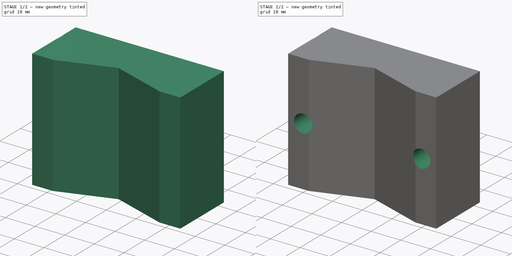
[diagram: build sequence overview — one tinted view per stage of 2, left to right]
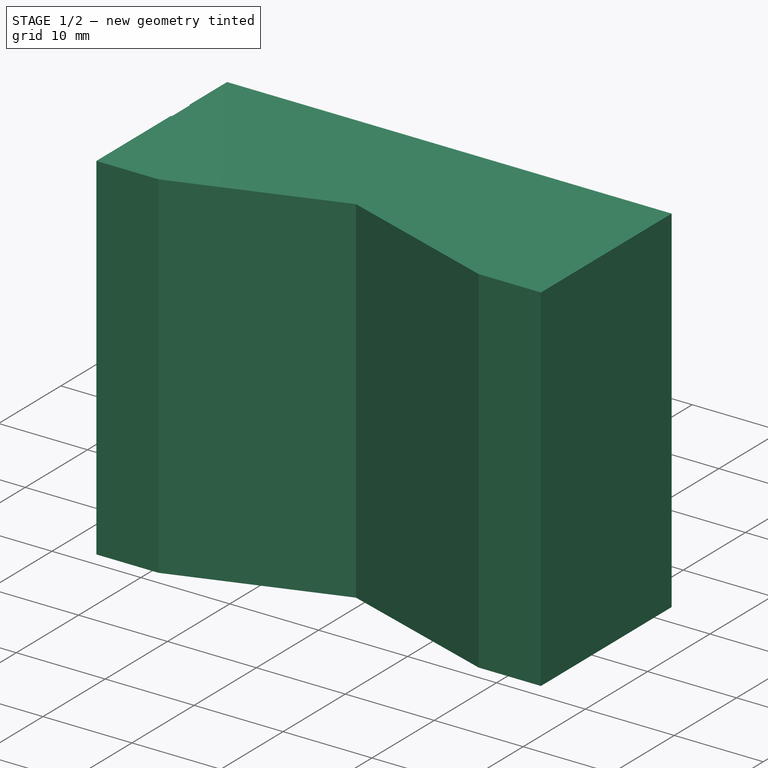
[diagram: stage 1 of 2 — iso view after this stage's code; geometry added in this stage tinted green]
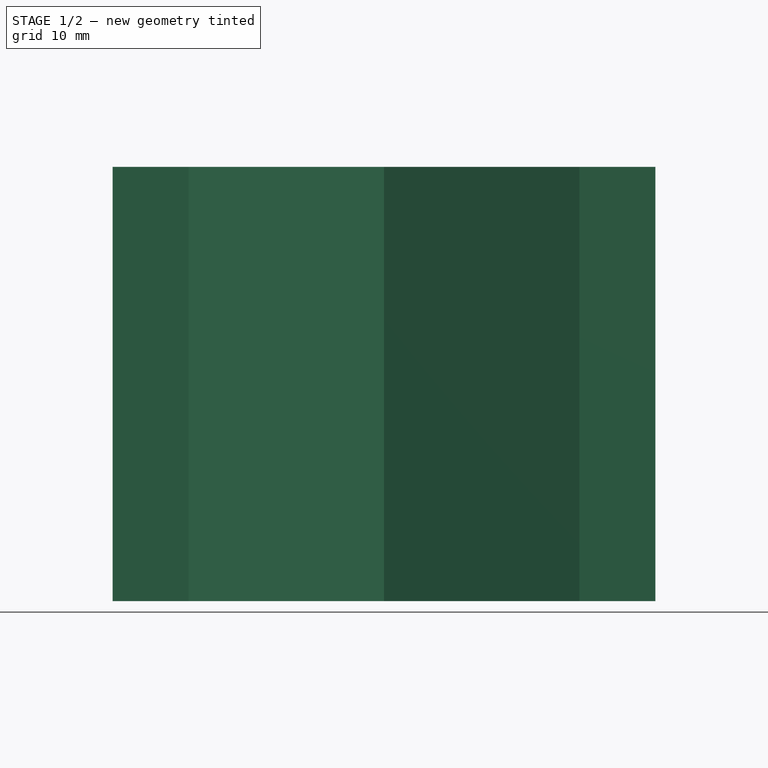
[diagram: stage 1 of 2 — front view after this stage's code; geometry added in this stage tinted green]
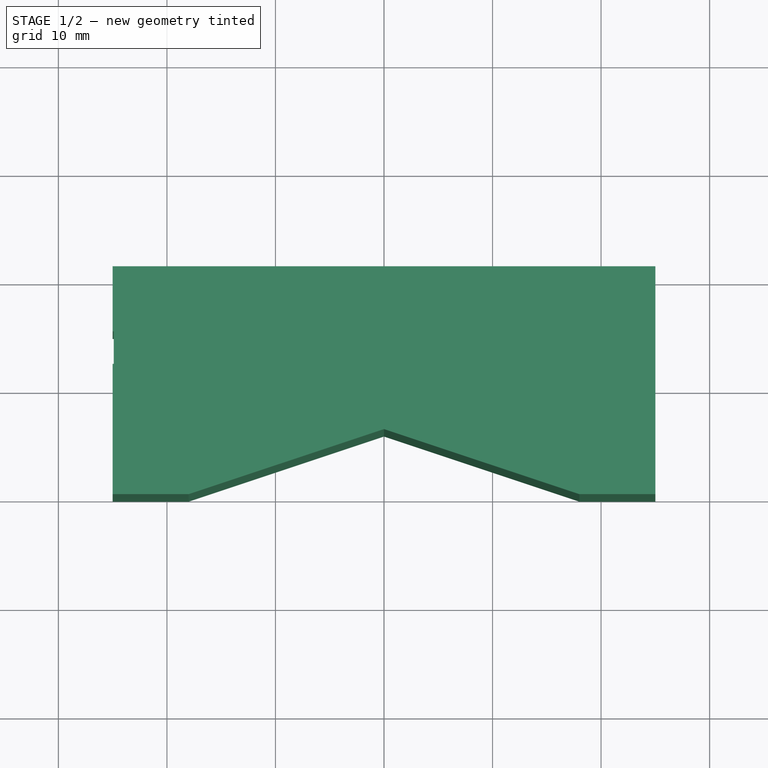
[diagram: stage 1 of 2 — top view after this stage's code; geometry added in this stage tinted green]
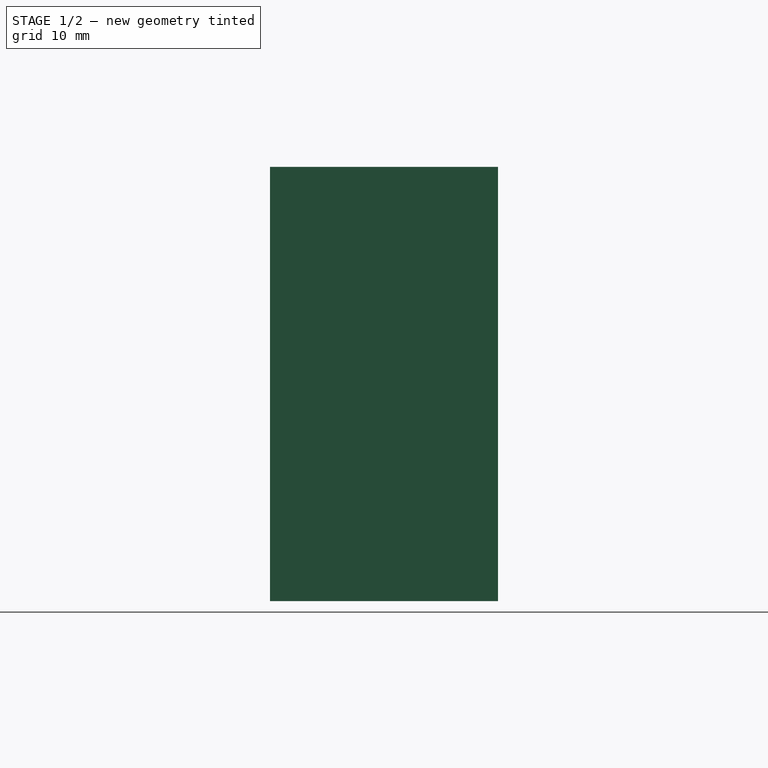
[diagram: stage 1 of 2 — right view after this stage's code; geometry added in this stage tinted green]
FCSTD DOCUMENT  (FreeCAD 0.19R)
Label: BarrelLeveler2
License: All rights reserved
LicenseURL: http://en.wikipedia.org/wiki/All_rights_reserved
objects: Sketcher::SketchObject×2, PartDesign::Pad×1, PartDesign::Pocket×1, PartDesign::Body×1
note: 7 computed .brp shape members not serialized (recipe doc carries the construction recipe); baked Part::Feature solids carry a one-line shape summary decoded from their .brp

FEATURE [Sketcher::SketchObject] Sketch
  FullyConstrained = true
  MapMode = 5
  Support = -> [XY_Plane]
  sketch-geometry (11):
    g0: LineSegment StartX=0 StartY=6 StartZ=0 EndX=18 EndY=0 EndZ=0
    g1: LineSegment StartX=18 StartY=0 StartZ=0 EndX=25 EndY=0 EndZ=0
    g2: LineSegment StartX=25 StartY=0 StartZ=0 EndX=25 EndY=21 EndZ=0
    g3: LineSegment StartX=25 StartY=21 StartZ=0 EndX=-25 EndY=21 EndZ=0
    g4: LineSegment StartX=-25 StartY=21 StartZ=0 EndX=-25 EndY=15 EndZ=0
    g5: LineSegment StartX=-25 StartY=15 StartZ=0 EndX=-24.9 EndY=15 EndZ=0
    g6: LineSegment StartX=-24.9 StartY=15 StartZ=0 EndX=-24.9 EndY=12 EndZ=0
    g7: LineSegment StartX=-24.9 StartY=12 StartZ=0 EndX=-25 EndY=12 EndZ=0
    g8: LineSegment StartX=-25 StartY=12 StartZ=0 EndX=-25 EndY=0 EndZ=0
    g9: LineSegment StartX=-25 StartY=0 StartZ=0 EndX=-18 EndY=0 EndZ=0
    g10: LineSegment StartX=-18 StartY=0 StartZ=0 EndX=0 EndY=6 EndZ=0
  constraints (31):
    c: PointOnObject(g0,g-2)
    c: PointOnObject(g0,g-1)
    c: Coincident(g0,g1)
    c: PointOnObject(g1,g-1)
    c: Coincident(g1,g2)
    c: Vertical(g2)
    c: Coincident(g2,g3)
    c: Coincident(g3,g4)
    c: Coincident(g4,g5)
    c: Horizontal(g5)
    c: Coincident(g5,g6)
    c: Vertical(g6)
    c: Coincident(g6,g7)
    c: Horizontal(g7)
    c: Coincident(g7,g8)
    c: PointOnObject(g8,g-1)
    c: Coincident(g8,g9)
    c: Coincident(g9,g10)
    c: Coincident(g10,g0)
    c: Symmetric(g0,g9,g-2)
    c: Symmetric(g2,g3,g-2)
    c: Vertical(g8)
    c: Vertical(g4)
    c: DistanceY(g0) = 6
    c: DistanceX(g0) = 18
    c: DistanceX(g1) = 25
    c: Equal(g1,g9)
    c: Distance(g8) = 12
    c: Distance(g6) = 3
    c: Distance(g4) = 6
    c: Distance(g7) = 0.1
FEATURE [PartDesign::Pad] Pad
  Direction = (1,1,1)
  Length = 40
  Length2 = 100
  Profile = -> Sketch
  Type = 0
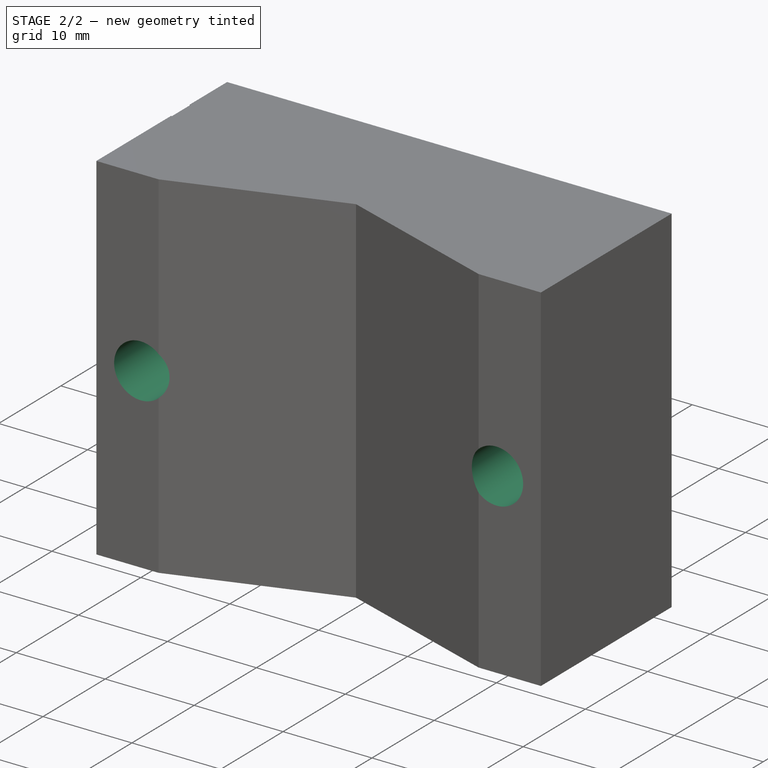
[diagram: stage 2 of 2 — iso view after this stage's code; geometry added in this stage tinted green]
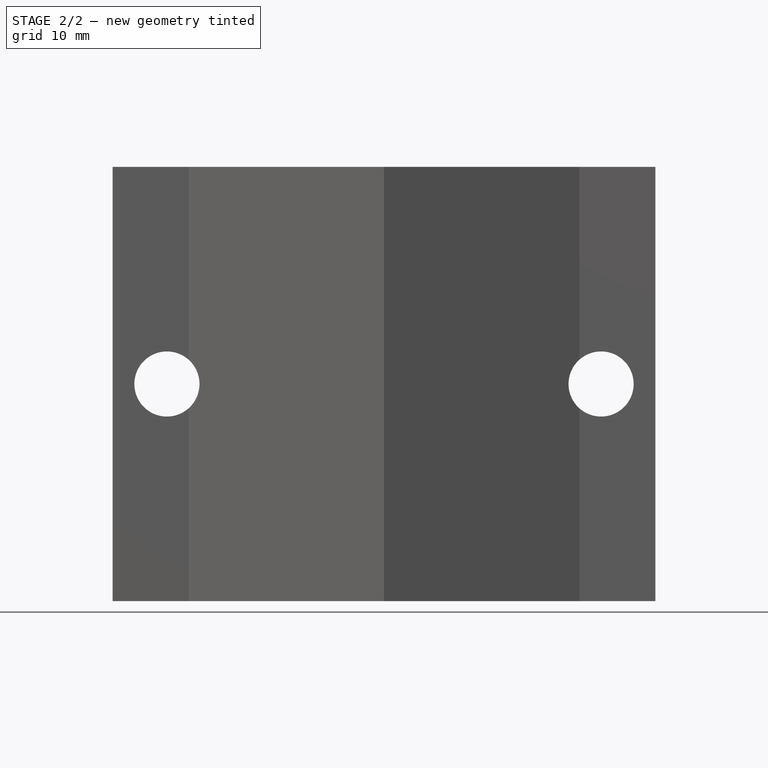
[diagram: stage 2 of 2 — front view after this stage's code; geometry added in this stage tinted green]
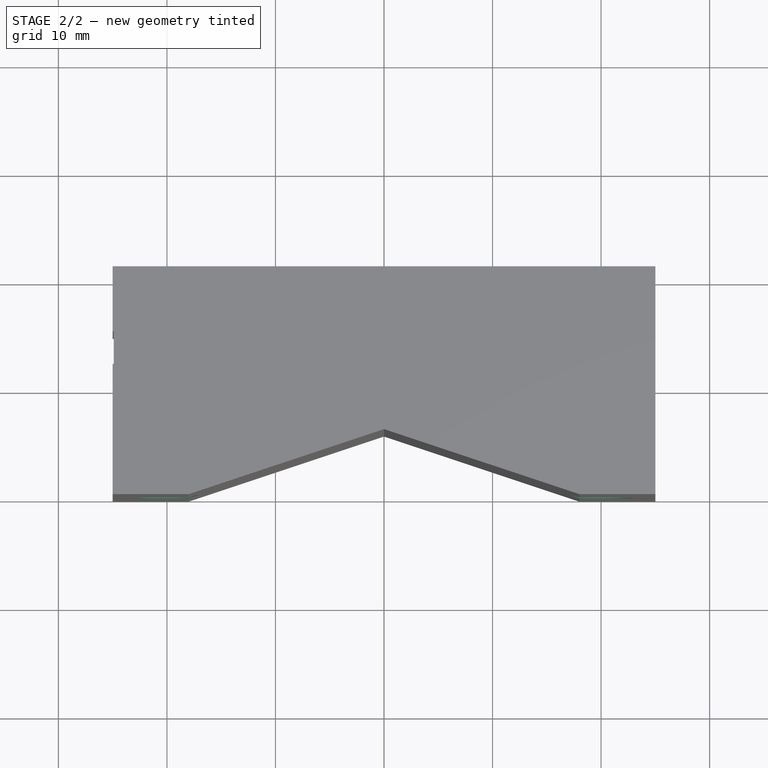
[diagram: stage 2 of 2 — top view after this stage's code; geometry added in this stage tinted green]
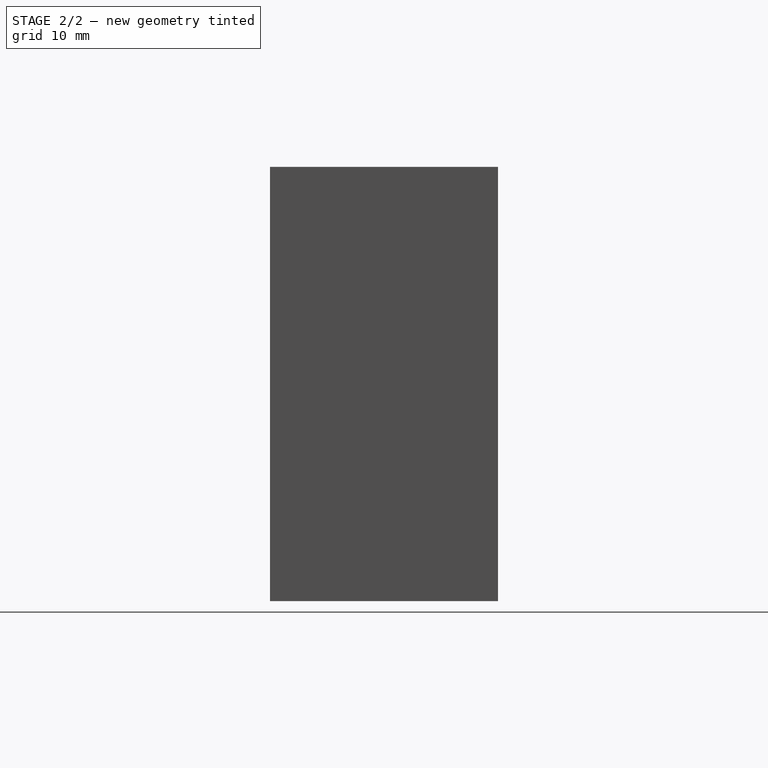
[diagram: stage 2 of 2 — right view after this stage's code; geometry added in this stage tinted green]
FEATURE [Sketcher::SketchObject] Sketch001
  FullyConstrained = true
  MapMode = 5
  Placement = pos=(0,21,0) rot=(0,0.707107,0.707107;3.14159rad)
  Support = -> [Pad]
  sketch-geometry (2):
    g0: Circle CenterX=20 CenterY=20 CenterZ=0 NormalX=0 NormalY=0 NormalZ=1 AngleXU=0 Radius=3
    g1: Circle CenterX=-20 CenterY=20 CenterZ=0 NormalX=0 NormalY=0 NormalZ=1 AngleXU=0 Radius=3
  constraints (6):
    c: Radius(g0) = 3
    c: DistanceY(g0) = 20
    c: DistanceX(g0) = 20
    c: Radius(g1) = 3
    c: DistanceY(g1) = 20
    c: DistanceX(g1) = -20
FEATURE [PartDesign::Pocket] Pocket
  BaseFeature = -> Pad
  Length = 23
  Length2 = 100
  Profile = -> Sketch001
  Type = 0
FEATURE [PartDesign::Body] Body
  Group = -> [Sketch,Pad,Sketch001,Pocket]
  Origin = -> Origin
  Tip = -> Pocket
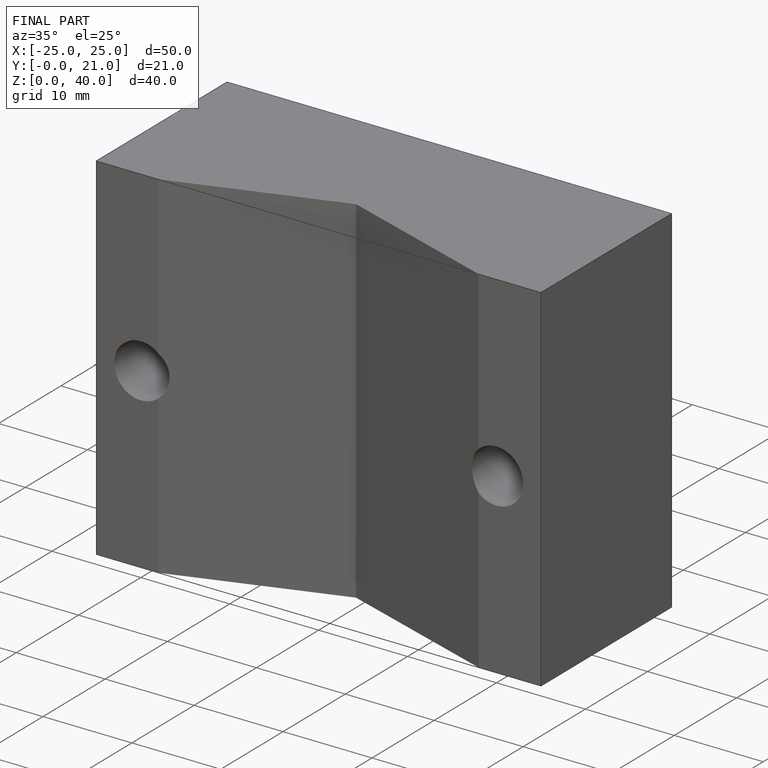
[diagram: finished part — iso view with bounding-box wireframe]
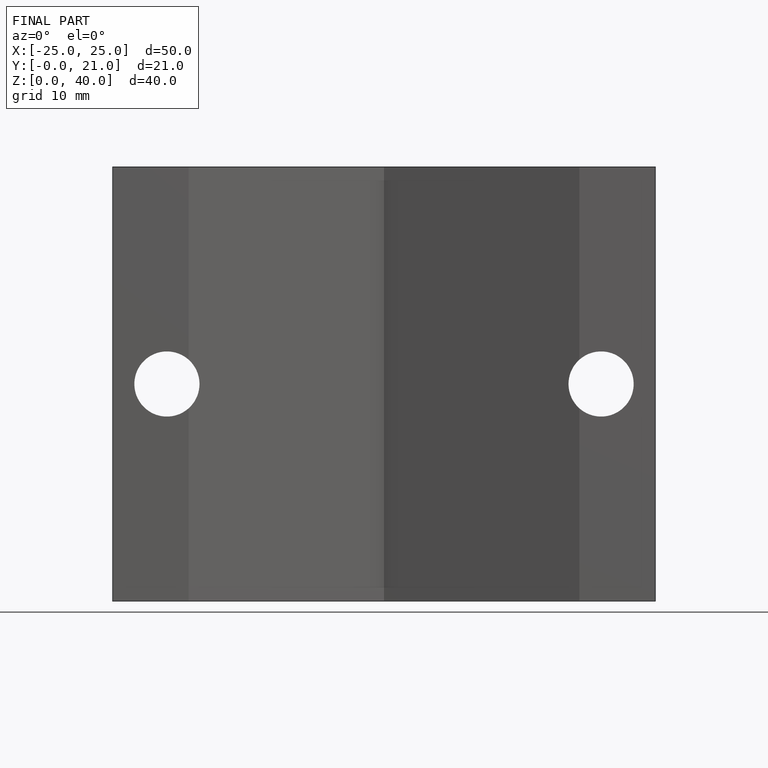
[diagram: finished part — front view with bounding-box wireframe]
